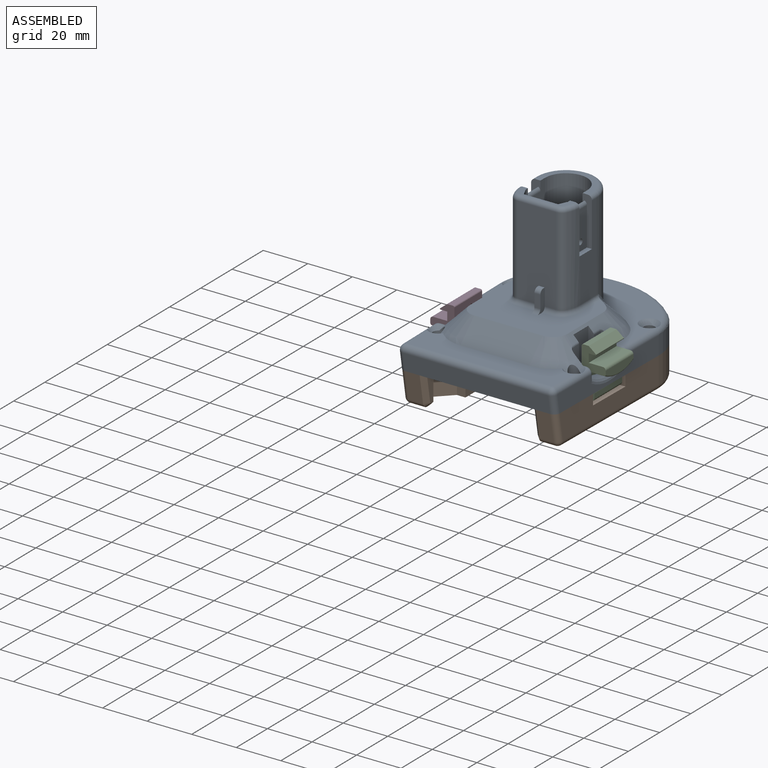
[diagram: assembled view]
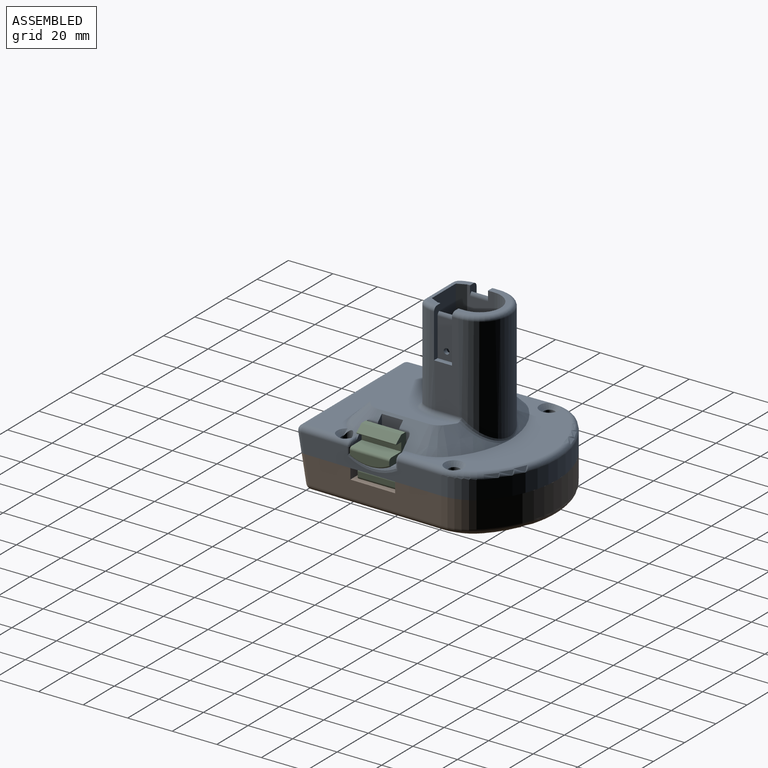
[diagram: assembled view, second angle]
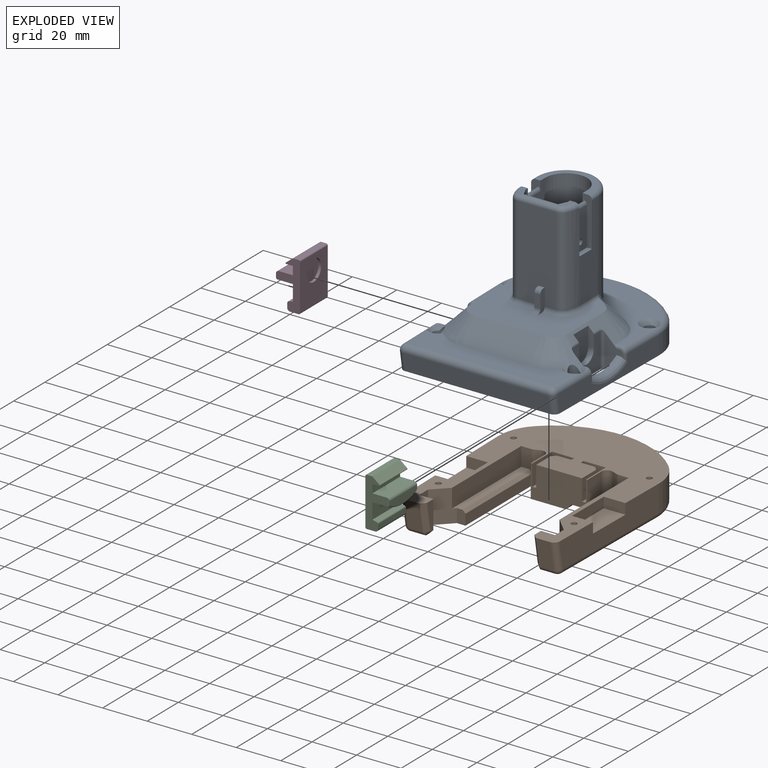
[diagram: exploded view]
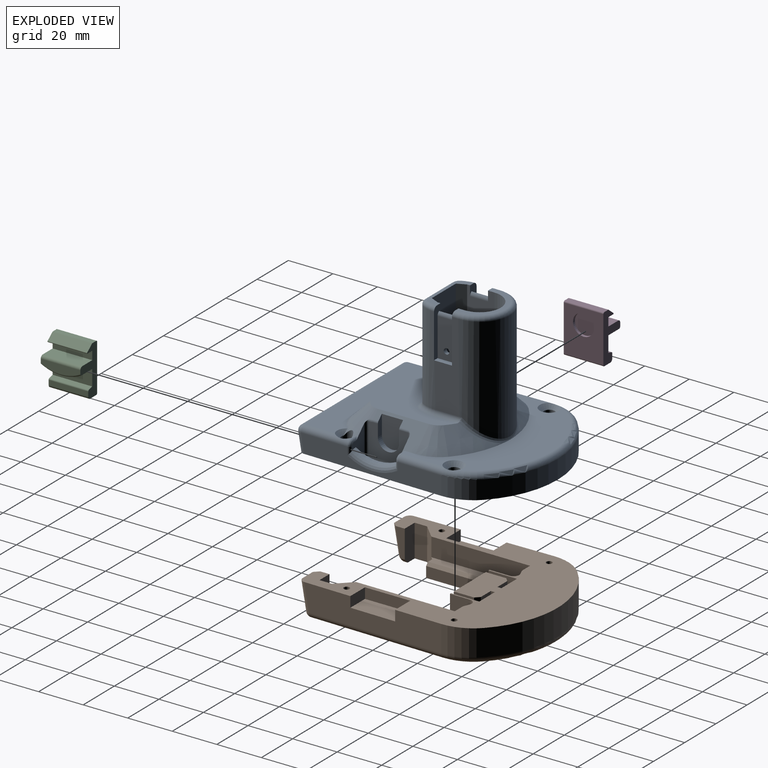
[diagram: exploded view, second angle]
ASSEMBLY  parts=4 mates=3
PART A: 148 faces, bbox 76.3x97.5x64.2 mm
  f0: cylinder r=1.27mm len=2.48mm, axis (0,-1,0), area 2.5mm2, adj f9,f90,f117,f137
  f1: cylinder r=1.27mm len=2.48mm, axis (0,1,0), area 2.5mm2, adj f11,f89,f119,f132
  f2: plane 0.29x0.17mm, normal (0,0,1), area 0mm2, adj f96,f113,f129
  f3: plane 0.29x0.17mm, normal (0,0,1), area 0mm2, adj f97,f110,f120
  f4: plane 67.84x45.03mm, normal (0,0,1), area 1211.9mm2, adj f9,f11,f13,f34,f35,f36,f46,f98
  f5: plane 65.55x14.98mm, normal (0,0,1), area 723.4mm2, adj f8,f10,f33,f96,f97,f110,f112,f113
  f6: plane 63.6x8.26mm, normal (-1,-0.02,0), area 389mm2, adj f28,f30,f106,f107,f109,f110,f122,f125
  f7: plane 20.32x6.99mm, normal (1,0,0), area 101.5mm2, adj f28,f84,f85,f100
  f8: cone r=6.45mm half-angle=45deg, axis (0,0,-1), area 193.7mm2, adj f5,f9,f25,f33,f88,f94,f96,f117
  f9: plane 23.62x10.59mm, normal (0.71,0,0.71), area 120.4mm2, adj f0,f4,f8,f25,f35,f86,f116,f126
  f10: cone r=6.45mm half-angle=45deg, axis (0,0,-1), area 193.7mm2, adj f5,f11,f25,f33,f84,f95,f97,f119
  f11: plane 23.62x10.59mm, normal (-0.71,0,0.71), area 120.4mm2, adj f1,f4,f10,f25,f34,f85,f118,f123
  f12: plane 23.5x14.66mm, normal (0,0,1), area 89.5mm2, adj f52,f57,f58,f59,f63,f75,f76,f77
  f13: cone r=38.1mm half-angle=45deg, axis (0,0,-1), area 160.8mm2, adj f4,f25,f34,f44,f46
  f14: plane 39.55x10.43mm, normal (-1,0,0), area 264.4mm2, adj f17,f23,f42,f51,f52,f75
  f15: plane 39.55x17.41mm, normal (0,-1,0), area 668mm2, adj f19,f20,f21,f31,f32,f37,f39,f72
  f16: plane 39.55x10.43mm, normal (1,0,0), area 264.4mm2, adj f17,f24,f45,f55,f57,f77
  f17: cylinder r=13.65mm len=49.2mm, axis (0,0,-1), area 1951mm2, adj f14,f16,f44,f46,f47,f76
  f18: plane 23.47x5.97mm, normal (0,0,1), area 41.1mm2, adj f50,f54,f59,f60,f61,f62,f63,f70
  f19: plane 9.55x4.7mm, normal (1,0,0), area 25.9mm2, adj f15,f20,f22,f25,f39,f48,f49
  f20: plane 2.67x0.89mm, normal (0,0,1), area 2.4mm2, adj f15,f19,f21,f49
  f21: plane 9.55x4.7mm, normal (-1,0,0), area 25.9mm2, adj f15,f20,f22,f25,f37,f48,f49
  f22: plane 5.74x2.67mm, normal (0,-1,0), area 15.3mm2, adj f19,f21,f48,f49
  f23: cylinder r=13.65mm len=39.55mm, axis (0,0,1), area 251.9mm2, adj f14,f32,f40,f50,f51,f70
  f24: cylinder r=13.65mm len=39.55mm, axis (0,0,1), area 251.9mm2, adj f16,f31,f43,f54,f55,f74
  f25: plane 43.76x37.53mm, normal (0,0,1), area 947.1mm2, adj f8,f9,f10,f11,f13,f19,f21,f33
  f26: cylinder r=42.91mm len=59.9mm, axis (0,0,1), area 547.3mm2, adj f28,f29,f30,f104
  f27: plane 63.6x8.26mm, normal (1,-0.02,0), area 389mm2, adj f28,f29,f102,f108,f113,f115,f128,f131
  f28: plane 91.91x72.36mm, normal (0,0,-1), area 4398.5mm2, adj f6,f7,f26,f27,f29,f30,f64,f65
  f29: cylinder r=20.32mm len=14.86mm, axis (0,0,1), area 136.5mm2, adj f26,f27,f28,f103
  f30: cylinder r=20.32mm len=14.86mm, axis (0,0,1), area 136.5mm2, adj f6,f26,f28,f105
  f31: cylinder r=3.81mm len=39.55mm, axis (0,0,1), area 163.5mm2, adj f15,f24,f41,f73
  f32: cylinder r=3.81mm len=39.55mm, axis (0,0,1), area 163.5mm2, adj f15,f23,f38,f71
  f33: plane 30.86x8.79mm, normal (0,-0.71,0.71), area 383.6mm2, adj f5,f8,f10,f25
  f34: cone r=6.45mm half-angle=45deg, axis (0,0,-1), area 111.9mm2, adj f4,f11,f13,f25
  f35: cone r=6.45mm half-angle=45deg, axis (0,0,-1), area 111.9mm2, adj f4,f9,f25,f36
  f36: cone r=38.1mm half-angle=45deg, axis (0,0,-1), area 160.8mm2, adj f4,f25,f35,f46,f47
  f37: cylinder r=1.91mm len=9.66mm, axis (-1,0,0), area 28.9mm2, adj f15,f21,f25,f38
  f38: torus R=5.71mm, axis (0,0,-1), area 14.6mm2, adj f25,f32,f37,f40
  f39: cylinder r=1.91mm len=5.08mm, axis (-1,0,0), area 15.2mm2, adj f15,f19,f25,f41
  f40: torus R=15.56mm, axis (0,0,-1), area 20.9mm2, adj f23,f25,f38,f42
  f41: torus R=5.71mm, axis (0,0,-1), area 14.6mm2, adj f25,f31,f39,f43
  f42: cylinder r=1.91mm len=10.43mm, axis (0,1,0), area 31.2mm2, adj f14,f25,f40,f44
  f43: torus R=15.56mm, axis (0,0,-1), area 20.9mm2, adj f24,f25,f41,f45
  f44: torus R=15.56mm, axis (0,0,-1), area 3.2mm2, adj f13,f17,f25,f42,f46
  f45: cylinder r=1.91mm len=10.43mm, axis (0,-1,0), area 31.2mm2, adj f16,f25,f43,f47
  f46: bspline ~29.68x15.11mm, area 81mm2, adj f4,f13,f17,f36,f44,f47
  f47: torus R=15.56mm, axis (0,0,-1), area 3.2mm2, adj f17,f25,f36,f45,f46
  f48: cylinder r=1.91mm len=2.67mm, axis (1,0,0), area 8mm2, adj f19,f21,f22,f25
  f49: cylinder r=1.91mm len=2.67mm, axis (1,0,0), area 8mm2, adj f19,f20,f21,f22
  f50: plane 21.63x4.22mm, normal (0,1,0), area 54.6mm2, adj f18,f23,f51,f53,f63,f70,f80,f81
  f51: plane 8.05x2.29mm, normal (0,0,1), area 18.4mm2, adj f14,f23,f50,f52,f53
  f52: plane 21.59x4.19mm, normal (0,-1,0), area 54.8mm2, adj f12,f14,f51,f53,f63,f75,f80,f81
  f53: plane 17.15x8.05mm, normal (-1,0,0), area 133mm2, adj f50,f51,f52,f80,f82
  f54: plane 21.63x4.22mm, normal (0,1,0), area 54.6mm2, adj f18,f24,f55,f56,f59,f74,f78,f79
  f55: plane 8.05x2.29mm, normal (0,0,1), area 18.4mm2, adj f16,f24,f54,f56,f57
  f56: plane 17.15x8.05mm, normal (1,0,0), area 133mm2, adj f54,f55,f57,f79,f83
  f57: plane 21.59x4.19mm, normal (0,-1,0), area 54.8mm2, adj f12,f16,f55,f56,f59,f77,f78,f79
  f58: cylinder r=9.46mm len=54.05mm, axis (0,0,1), area 1606.6mm2, adj f12,f59,f63,f68
  f59: plane 54.05x12.29mm, normal (-1,0,0), area 623.5mm2, adj f12,f18,f54,f57,f58,f60,f69,f78
  f60: plane 54.05x3.81mm, normal (-0.91,0.42,0), area 227.2mm2, adj f18,f59,f61,f67
  f61: plane 54.05x15.37mm, normal (0,1,0), area 830.8mm2, adj f18,f60,f62,f65
  f62: plane 54.05x3.81mm, normal (0.91,0.42,0), area 227.2mm2, adj f18,f61,f63,f64
  f63: plane 54.05x12.29mm, normal (1,0,0), area 623.5mm2, adj f12,f18,f50,f52,f58,f62,f66,f81
  f64: plane 12.7x10.67mm, normal (0.64,0.3,-0.71), area 100.8mm2, adj f28,f62,f65,f66
  f65: plane 26.7x8.89mm, normal (0,0.71,-0.71), area 264.4mm2, adj f28,f61,f64,f67
  f66: plane 14.26x8.89mm, normal (0.71,0,-0.71), area 166.9mm2, adj f28,f63,f64,f68
  f67: plane 12.7x10.67mm, normal (-0.64,0.3,-0.71), area 100.8mm2, adj f28,f60,f65,f69
  f68: cone r=18.35mm half-angle=45deg, axis (0,0,-1), area 549.3mm2, adj f28,f58,f66,f69
  f69: plane 14.26x8.89mm, normal (-0.71,0,-0.71), area 166.9mm2, adj f28,f59,f67,f68
  f70: torus R=11.75mm, axis (0,0,-1), area 17.2mm2, adj f18,f23,f50,f71
  f71: torus R=1.91mm, axis (0,0,-1), area 10.1mm2, adj f18,f32,f70,f72
  f72: cylinder r=1.91mm len=17.41mm, axis (1,0,0), area 52.1mm2, adj f15,f18,f71,f73
  f73: torus R=1.91mm, axis (0,0,-1), area 10.1mm2, adj f18,f31,f72,f74
  f74: torus R=11.75mm, axis (0,0,-1), area 17.2mm2, adj f18,f24,f54,f73
  f75: cylinder r=1.91mm len=2.91mm, axis (0,-1,0), area 8.7mm2, adj f12,f14,f52,f76
  f76: torus R=11.75mm, axis (0,0,-1), area 121.8mm2, adj f12,f17,f75,f77
  f77: cylinder r=1.91mm len=2.91mm, axis (0,1,0), area 8.7mm2, adj f12,f16,f57,f76
  f78: cylinder r=1.91mm len=8.05mm, axis (0,1,0), area 16.1mm2, adj f54,f57,f59,f79
  f79: cylinder r=1.91mm len=8.05mm, axis (0,-1,0), area 16.1mm2, adj f54,f56,f57,f78
  f80: cylinder r=1.91mm len=8.05mm, axis (0,-1,0), area 16.1mm2, adj f50,f52,f53,f81
  f81: cylinder r=1.91mm len=8.05mm, axis (0,-1,0), area 16.1mm2, adj f50,f52,f63,f80
  f82: cylinder r=1.27mm len=2.54mm, axis (-1,0,0), area 15.2mm2, adj f53,f63
  f83: cylinder r=1.27mm len=2.54mm, axis (-1,0,0), area 15.2mm2, adj f56,f59
  f84: plane 14.61x7.68mm, normal (0,1,0), area 66.6mm2, adj f7,f10,f28,f100,f107,f120,f121,f122
  f85: plane 14.8x7.84mm, normal (0,-1,0), area 69.1mm2, adj f7,f11,f28,f100,f107,f123,f124,f125
  f86: plane 14.8x7.84mm, normal (0,-1,0), area 69.1mm2, adj f9,f28,f87,f101,f108,f126,f127,f128
  f87: plane 20.32x6.99mm, normal (-1,0,0), area 101.5mm2, adj f28,f86,f88,f101
  f88: plane 14.61x7.68mm, normal (0,1,0), area 66.6mm2, adj f8,f28,f87,f101,f108,f129,f130,f131
  f89: plane 17.79x15.54mm, normal (-1,0,0), area 188.6mm2, adj f1,f28,f118,f119,f132,f133,f134,f144
  f90: plane 17.79x15.54mm, normal (1,0,0), area 188.6mm2, adj f0,f28,f116,f117,f136,f137,f138,f140
  f91: plane 65.18x7.81mm, normal (0,-0.98,-0.17), area 517mm2, adj f28,f109,f112,f115
  f92: cylinder r=2.41mm len=8.89mm, axis (0,0,1), area 134.8mm2, adj f28,f99
  f93: cylinder r=2.41mm len=8.89mm, axis (0,0,1), area 134.8mm2, adj f28,f98
  f94: cylinder r=2.41mm len=11.43mm, axis (0,0,1), area 146.7mm2, adj f8,f28,f96
  f95: cylinder r=2.41mm len=11.43mm, axis (0,0,1), area 146.7mm2, adj f10,f28,f97
  f96: cone r=4.32mm half-angle=45deg, axis (0,0,1), area 31.5mm2, adj f2,f5,f8,f94,f113,f129
  f97: cone r=4.32mm half-angle=45deg, axis (0,0,1), area 31.5mm2, adj f3,f5,f10,f95,f110,f120
  f98: cone r=4.32mm half-angle=45deg, axis (0,0,1), area 56.4mm2, adj f4,f93,f102,f103
  f99: cone r=4.32mm half-angle=45deg, axis (0,0,1), area 56.4mm2, adj f4,f92,f105,f106
  f100: cylinder r=19.05mm len=20.32mm, axis (1,0,0), area 28.2mm2, adj f7,f84,f85,f107
  f101: cylinder r=19.05mm len=20.32mm, axis (-1,0,0), area 28.2mm2, adj f86,f87,f88,f108
  f102: cylinder r=2.54mm len=19.82mm, axis (-0.02,-1,0), area 78.5mm2, adj f4,f27,f98,f103,f127
  f103: torus R=17.78mm, axis (0,0,-1), area 58mm2, adj f4,f29,f98,f102,f104
  f104: torus R=40.37mm, axis (0,0,-1), area 258.8mm2, adj f4,f26,f103,f105
  f105: torus R=17.78mm, axis (0,0,-1), area 58mm2, adj f4,f30,f99,f104,f106
  f106: cylinder r=2.54mm len=19.82mm, axis (-0.02,1,0), area 78.5mm2, adj f4,f6,f99,f105,f124
  f107: bspline ~23.03x5.47mm, area 88mm2, adj f6,f84,f85,f100,f122,f125
  f108: bspline ~23.03x5.47mm, area 88mm2, adj f27,f86,f88,f101,f128,f131
  f109: cylinder r=2.54mm len=8.7mm, axis (0,-0.17,0.98), area 32.2mm2, adj f6,f28,f91,f111
  f110: cylinder r=2.54mm len=21.02mm, axis (-0.02,1,0), area 75.5mm2, adj f3,f5,f6,f97,f111,f121
  f111: sphere r=2.54mm, area 11.2mm2, adj f109,f110,f112
  f112: cylinder r=2.54mm len=65.14mm, axis (1,0,0), area 288.8mm2, adj f5,f91,f111,f114
  f113: cylinder r=2.54mm len=21.02mm, axis (-0.02,-1,0), area 75.5mm2, adj f2,f5,f27,f96,f114,f130
  f114: sphere r=2.54mm, area 11.1mm2, adj f112,f113,f115
  f115: cylinder r=2.54mm len=8.7mm, axis (0,0.17,-0.98), area 32.2mm2, adj f27,f28,f91,f114
  f116: cylinder r=1.27mm len=4.13mm, axis (0,-1,0), area 4.1mm2, adj f9,f90,f138,f143
  f117: bspline ~5.65x1.53mm, area 1.6mm2, adj f0,f8,f90,f141
  f118: cylinder r=1.27mm len=4.13mm, axis (0,1,0), area 4.1mm2, adj f11,f89,f134,f147
  f119: bspline ~5.65x1.53mm, area 1.6mm2, adj f1,f10,f89,f145
  f120: cylinder r=1.27mm len=2.59mm, axis (-1,0,0), area 3.3mm2, adj f3,f10,f84,f97,f121
  f121: bspline ~3x2.54mm, area 6.6mm2, adj f84,f110,f120,f122
  f122: cylinder r=1.27mm len=3.48mm, axis (0,0,1), area 5.2mm2, adj f6,f84,f107,f121
  f123: cylinder r=1.27mm len=2.57mm, axis (1,0,0), area 3.9mm2, adj f4,f11,f85,f124
  f124: bspline ~2.98x2.54mm, area 6.5mm2, adj f85,f106,f123,f125
  f125: cylinder r=1.27mm len=3.46mm, axis (0,0,-1), area 5.1mm2, adj f6,f85,f107,f124
  f126: cylinder r=1.27mm len=2.57mm, axis (1,0,0), area 3.9mm2, adj f4,f9,f86,f127
  f127: bspline ~2.98x2.65mm, area 6.5mm2, adj f86,f102,f126,f128
  f128: cylinder r=1.27mm len=3.46mm, axis (0,0,1), area 5.1mm2, adj f27,f86,f108,f127
  f129: cylinder r=1.27mm len=2.59mm, axis (-1,0,0), area 3.3mm2, adj f2,f8,f88,f96,f130
  f130: bspline ~3x2.99mm, area 6.6mm2, adj f88,f113,f129,f131
  f131: cylinder r=1.27mm len=3.48mm, axis (0,0,-1), area 5.2mm2, adj f27,f88,f108,f130
  f132: plane 8.52x2.54mm, normal (0,1,0), area 18.4mm2, adj f1,f11,f89,f133,f135
  f133: cylinder r=4.76mm len=9.53mm, axis (-1,0,0), area 38mm2, adj f89,f132,f134,f135
  f134: plane 8.52x2.54mm, normal (0,-1,0), area 18.4mm2, adj f11,f89,f118,f133,f135
  f135: plane 13.28x9.53mm, normal (-1,0,0), area 116.8mm2, adj f11,f132,f133,f134
  f136: cylinder r=4.76mm len=9.53mm, axis (1,0,0), area 38mm2, adj f90,f137,f138,f139
  f137: plane 8.52x2.54mm, normal (0,1,0), area 18.4mm2, adj f0,f9,f90,f136,f139
  f138: plane 8.52x2.54mm, normal (0,-1,0), area 18.4mm2, adj f9,f90,f116,f136,f139
  f139: plane 13.28x9.53mm, normal (1,0,0), area 116.8mm2, adj f9,f136,f137,f138
  f140: cylinder r=1.27mm len=15.38mm, axis (0,0,-1), area 30.2mm2, adj f8,f28,f88,f90,f141
  f141: bspline ~2.71x1.92mm, area 0.5mm2, adj f8,f117,f140
  f142: cylinder r=1.27mm len=15.54mm, axis (0,0,-1), area 30.7mm2, adj f9,f28,f86,f90,f143
  f143: torus R=2.54mm, axis (0,1,0), area 0.6mm2, adj f9,f116,f142
  f144: cylinder r=1.27mm len=15.38mm, axis (0,0,-1), area 30.2mm2, adj f10,f28,f84,f89,f145
  f145: bspline ~2.71x1.87mm, area 0.5mm2, adj f10,f119,f144
  f146: cylinder r=1.27mm len=15.54mm, axis (0,0,-1), area 30.7mm2, adj f11,f28,f85,f89,f147
  f147: torus R=2.54mm, axis (0,1,0), area 0.6mm2, adj f11,f118,f146
PART B: 85 faces, bbox 75.5x95.2x14.9 mm
  f0: plane 62.08x11.94mm, normal (1,0.02,0), area 633.2mm2, adj f16,f31,f40,f42,f43,f48,f50
  f1: plane 12.57x4.17mm, normal (-1,0,0), area 38.5mm2, adj f16,f60,f61,f62,f84
  f2: plane 14.48x5.59mm, normal (-1,0,0), area 80.9mm2, adj f16,f17,f23,f84
  f3: plane 6.1x3.87mm, normal (0,1,0), area 22.8mm2, adj f17,f18,f19,f23,f64
  f4: plane 44.32x8.38mm, normal (-1,0,0), area 371.5mm2, adj f5,f16,f19,f23
  f5: plane 9.16x4.65mm, normal (0,1,0), area 39.3mm2, adj f4,f16,f19,f64,f74
  f6: plane 14.48x8.93mm, normal (1,0,0), area 129.4mm2, adj f7,f16,f17,f71
  f7: plane 25.4x14.48mm, normal (0,1,0), area 316.6mm2, adj f6,f8,f16,f17,f24,f25,f26,f27
  f8: plane 14.48x8.93mm, normal (-1,0,0), area 129.4mm2, adj f7,f16,f17,f72
  f9: plane 9.16x4.65mm, normal (0,1,0), area 39.3mm2, adj f10,f16,f20,f63,f73
  f10: plane 44.32x8.38mm, normal (1,0,0), area 371.5mm2, adj f9,f16,f20,f22
  f11: plane 6.1x3.87mm, normal (0,1,0), area 22.8mm2, adj f17,f20,f21,f22,f63
  f12: plane 14.48x5.59mm, normal (1,0,0), area 80.9mm2, adj f16,f17,f22,f83
  f13: plane 12.57x4.17mm, normal (1,0,0), area 38.5mm2, adj f16,f57,f58,f59,f83
  f14: plane 62.08x11.94mm, normal (-1,0.02,0), area 633.2mm2, adj f16,f30,f36,f38,f39,f54,f56
  f15: cylinder r=42.93mm len=59.86mm, axis (0,0,-1), area 790.7mm2, adj f16,f30,f31,f52
  f16: plane 91.67x72.16mm, normal (0,0,1), area 2750.7mm2, adj f0,f1,f2,f4,f5,f6,f7,f8
  f17: plane 84.45x67.08mm, normal (0,0,-1), area 2770.1mm2, adj f2,f3,f6,f7,f8,f11,f12,f18
  f18: plane 43.05x4.83mm, normal (-1,0,0), area 207.8mm2, adj f3,f17,f64,f70
  f19: plane 44.32x3.87mm, normal (0,0,1), area 167.6mm2, adj f3,f4,f5,f23,f64
  f20: plane 44.32x3.87mm, normal (0,0,1), area 167.6mm2, adj f9,f10,f11,f22,f63
  f21: plane 43.05x4.83mm, normal (1,0,0), area 207.8mm2, adj f11,f17,f63,f69
  f22: plane 14.48x7.62mm, normal (0.71,0.71,0), area 141mm2, adj f10,f11,f12,f16,f17,f20
  f23: plane 14.48x7.62mm, normal (-0.71,0.71,0), area 141mm2, adj f2,f3,f4,f16,f17,f19
  f24: plane 9.4x9.13mm, normal (1,0,0), area 85.8mm2, adj f7,f16,f26,f82
  f25: plane 12.7x9.4mm, normal (-1,0,0), area 119.4mm2, adj f7,f16,f26,f79
  f26: plane 12.7x9.92mm, normal (0,0,1), area 38.7mm2, adj f7,f24,f25,f79,f80,f81,f82
  f27: plane 12.7x9.4mm, normal (1,0,0), area 119.4mm2, adj f7,f16,f29,f78
  f28: plane 9.4x9.13mm, normal (-1,0,0), area 85.8mm2, adj f7,f16,f29,f75
  f29: plane 12.7x9.92mm, normal (0,0,1), area 38.7mm2, adj f7,f27,f28,f75,f76,f77,f78
  f30: cylinder r=20.32mm len=14.9mm, axis (0,0,-1), area 197.8mm2, adj f14,f15,f16,f53
  f31: cylinder r=20.32mm len=14.9mm, axis (0,0,-1), area 197.8mm2, adj f0,f15,f16,f51
  f32: plane 25.4x4.45mm, normal (0,0,-1), area 112.9mm2, adj f7,f33,f34,f35
  f33: plane 9.53x2.54mm, normal (0,1,0), area 17.7mm2, adj f17,f32,f34,f35
  f34: plane 25.4x2.54mm, normal (0.71,0,-0.71), area 91.2mm2, adj f7,f17,f32,f33
  f35: plane 25.4x2.54mm, normal (-0.71,0,-0.71), area 91.2mm2, adj f7,f17,f32,f33
  f36: plane 9.38x4.7mm, normal (0,-1,0), area 44.1mm2, adj f14,f16,f37,f39
  f37: plane 20.32x4.7mm, normal (-1,0,0), area 95.5mm2, adj f16,f36,f38,f39
  f38: plane 9.71x4.7mm, normal (0,1,0), area 45.6mm2, adj f14,f16,f37,f39
  f39: plane 20.32x9.71mm, normal (0,0,1), area 193.9mm2, adj f14,f36,f37,f38
  f40: plane 9.71x4.7mm, normal (0,1,0), area 45.6mm2, adj f0,f16,f41,f43
  f41: plane 20.32x4.7mm, normal (1,0,0), area 95.5mm2, adj f16,f40,f42,f43
  f42: plane 9.38x4.7mm, normal (0,-1,0), area 44.1mm2, adj f0,f16,f41,f43
  f43: plane 20.32x9.71mm, normal (0,0,1), area 193.9mm2, adj f0,f40,f41,f42
  f44: plane 12.38x6.53mm, normal (0,0.98,-0.17), area 81.9mm2, adj f16,f47,f48,f60
  f45: plane 12.38x6.53mm, normal (0,0.98,-0.17), area 81.9mm2, adj f16,f46,f56,f57
  f46: cylinder r=2.54mm len=6.53mm, axis (1,0,0), area 23.2mm2, adj f17,f45,f55,f58
  f47: cylinder r=2.54mm len=6.53mm, axis (1,0,0), area 23.2mm2, adj f17,f44,f49,f61
  f48: cylinder r=2.54mm len=12.82mm, axis (0,0.17,0.98), area 49mm2, adj f0,f16,f44,f49
  f49: sphere r=2.54mm, area 8.9mm2, adj f47,f48,f50
  f50: cylinder r=2.54mm len=60.02mm, axis (-0.02,1,0), area 239.3mm2, adj f0,f17,f49,f51
  f51: torus R=17.78mm, axis (0,0,1), area 63.1mm2, adj f17,f31,f50,f52
  f52: torus R=40.39mm, axis (0,0,1), area 258.6mm2, adj f15,f17,f51,f53
  f53: torus R=17.78mm, axis (0,0,1), area 63.1mm2, adj f17,f30,f52,f54
  f54: cylinder r=2.54mm len=60.02mm, axis (-0.02,-1,0), area 239.3mm2, adj f14,f17,f53,f55
  f55: sphere r=2.54mm, area 8.9mm2, adj f46,f54,f56
  f56: cylinder r=2.54mm len=12.82mm, axis (0,-0.17,-0.98), area 49mm2, adj f14,f16,f45,f55
  f57: plane 12.38x4.06mm, normal (0.71,0.7,-0.12), area 33.4mm2, adj f13,f16,f45,f58
  f58: cone r=0.64mm half-angle=45deg, axis (-1,0,0), area 6mm2, adj f13,f46,f57,f59
  f59: plane 1.91x1.91mm, normal (0.71,0,-0.71), area 3.8mm2, adj f13,f17,f58,f83
  f60: plane 12.38x4.06mm, normal (-0.71,0.7,-0.12), area 33.4mm2, adj f1,f16,f44,f61
  f61: cone r=0.64mm half-angle=45deg, axis (1,0,0), area 6mm2, adj f1,f47,f60,f62
  f62: plane 1.91x1.91mm, normal (-0.71,0,-0.71), area 3.8mm2, adj f1,f17,f61,f84
  f63: plane 43.26x1.75mm, normal (0.71,0,0.71), area 77.3mm2, adj f9,f11,f20,f21,f69,f73
  f64: plane 43.26x1.75mm, normal (-0.71,0,0.71), area 77.3mm2, adj f3,f5,f18,f19,f70,f74
  f65: cylinder r=1.27mm len=14.48mm, axis (0,0,1), area 115.5mm2, adj f16,f17
  f66: cylinder r=1.27mm len=14.48mm, axis (0,0,1), area 115.5mm2, adj f16,f17
  f67: cylinder r=1.27mm len=14.48mm, axis (0,0,1), area 115.5mm2, adj f16,f17
  f68: cylinder r=1.27mm len=14.48mm, axis (0,0,1), area 115.5mm2, adj f16,f17
  f69: plane 14.48x2.8mm, normal (0.37,0.93,0), area 38.8mm2, adj f16,f17,f21,f63,f72,f73
  f70: plane 14.48x2.8mm, normal (-0.37,0.93,0), area 38.8mm2, adj f16,f17,f18,f64,f71,f74
  f71: cylinder r=2.54mm len=14.48mm, axis (0,0,-1), area 71.9mm2, adj f6,f16,f17,f70
  f72: cylinder r=2.54mm len=14.48mm, axis (0,0,-1), area 71.9mm2, adj f8,f16,f17,f69
  f73: cylinder r=2.54mm len=10.11mm, axis (0,0,1), area 9.4mm2, adj f9,f16,f63,f69
  f74: cylinder r=2.54mm len=10.11mm, axis (0,0,1), area 9.4mm2, adj f5,f16,f64,f70
  f75: plane 9.4x1.8mm, normal (-0.71,-0.71,0), area 23.9mm2, adj f16,f28,f29,f76
  f76: plane 9.4x6.35mm, normal (0,-1,0), area 59.7mm2, adj f16,f29,f75,f77
  f77: plane 9.4x1.78mm, normal (-1,0,0), area 16.7mm2, adj f16,f29,f76,f78
  f78: plane 9.92x9.4mm, normal (0,1,0), area 93.3mm2, adj f16,f27,f29,f77
  f79: plane 9.92x9.4mm, normal (0,1,0), area 93.3mm2, adj f16,f25,f26,f80
  f80: plane 9.4x1.78mm, normal (1,0,0), area 16.7mm2, adj f16,f26,f79,f81
  f81: plane 9.4x6.35mm, normal (0,-1,0), area 59.7mm2, adj f16,f26,f80,f82
  f82: plane 9.4x1.8mm, normal (0.71,-0.71,0), area 23.9mm2, adj f16,f24,f26,f81
  f83: plane 14.48x6.35mm, normal (0,-1,0), area 90.1mm2, adj f12,f13,f16,f17,f59
  f84: plane 14.48x6.35mm, normal (0,-1,0), area 90.1mm2, adj f1,f2,f16,f17,f62
PART C: 23 faces, bbox 10.8x19.9x22 mm
  f0: plane 17.78x7.11mm, normal (-1,0,0), area 100mm2, adj f8,f9,f10,f15
  f1: plane 17.78x2.04mm, normal (-1,0,0), area 36.3mm2, adj f9,f10,f16,f21
  f2: plane 17.78x3.81mm, normal (0,0,-1), area 67.7mm2, adj f9,f10,f17,f21
  f3: plane 20.7x17.78mm, normal (1,0,0), area 296.8mm2, adj f9,f10,f11,f17,f19
  f4: plane 17.78x2.54mm, normal (0,0,1), area 45.2mm2, adj f5,f9,f10,f19
  f5: plane 17.78x3.24mm, normal (-0.62,0,0.78), area 73.9mm2, adj f4,f9,f10,f22
  f6: plane 17.78x3.09mm, normal (0,0,-1), area 54.9mm2, adj f7,f9,f10,f22
  f7: plane 17.78x3.81mm, normal (-1,0,0), area 67.7mm2, adj f6,f9,f10,f14
  f8: plane 17.78x2.06mm, normal (-0.24,0,0.97), area 37.7mm2, adj f0,f9,f10,f16
  f9: plane 21.97x10.8mm, normal (0,-1,0), area 112mm2, adj f0,f1,f2,f3,f4,f5,f6,f7
  f10: plane 21.97x10.8mm, normal (0,1,0), area 112mm2, adj f0,f1,f2,f3,f4,f5,f6,f7
  f11: cylinder r=4.76mm len=9.53mm, axis (1,0,0), area 38mm2, adj f3,f12
  f12: plane 9.53x9.53mm, normal (1,0,0), area 71.3mm2, adj f11
  f13: plane 17.78x3.85mm, normal (-1,0,0), area 55.3mm2, adj f9,f10,f18,f20
  f14: plane 17.78x6.35mm, normal (0,0,1), area 112.9mm2, adj f7,f9,f10,f20
  f15: cylinder r=19.05mm len=17.78mm, axis (-1,0,0), area 129.2mm2, adj f0,f9,f10,f18
  f16: cylinder r=0.64mm len=17.78mm, axis (0,1,0), area 15mm2, adj f1,f8,f9,f10
  f17: cylinder r=0.64mm len=17.78mm, axis (0,1,0), area 17.7mm2, adj f2,f3,f9,f10
  f18: torus R=18.41mm, axis (-1,0,0), area 18.5mm2, adj f9,f10,f13,f15
  f19: cylinder r=0.64mm len=17.78mm, axis (0,1,0), area 17.7mm2, adj f3,f4,f9,f10
  f20: cylinder r=1.27mm len=17.78mm, axis (0,1,0), area 35.5mm2, adj f9,f10,f13,f14
  f21: cylinder r=1.27mm len=17.78mm, axis (0,1,0), area 35.5mm2, adj f1,f2,f9,f10
  f22: cylinder r=0.25mm len=17.78mm, axis (0,1,0), area 11.1mm2, adj f5,f6,f9,f10
PART D: same geometry as C
PLACE A t=(13.65,-18.83,-43.36)mm fixed
PLACE B rot(axis=(0,0,1),180deg) t=(-36.2,15.15,-77.42)mm
PLACE C rot(axis=(0,0,1),180deg) t=(28.57,-30.8,-67.39)mm
PLACE D rot(axis=(0,1,0),0deg) t=(-28.58,-13.02,-67.39)mm
MATE fastened A.f94 <-> B.f67  axis (0,0,-1) through (30.48,-38.37,-62.94)mm
MATE revolute C.f9 <-> A.f86  axis (0,1,0) through (31.75,-13.02,-62.94)mm
MATE revolute A.f85 <-> D.f10  axis (0,-1,0) through (-31.75,-13.02,-62.94)mm
